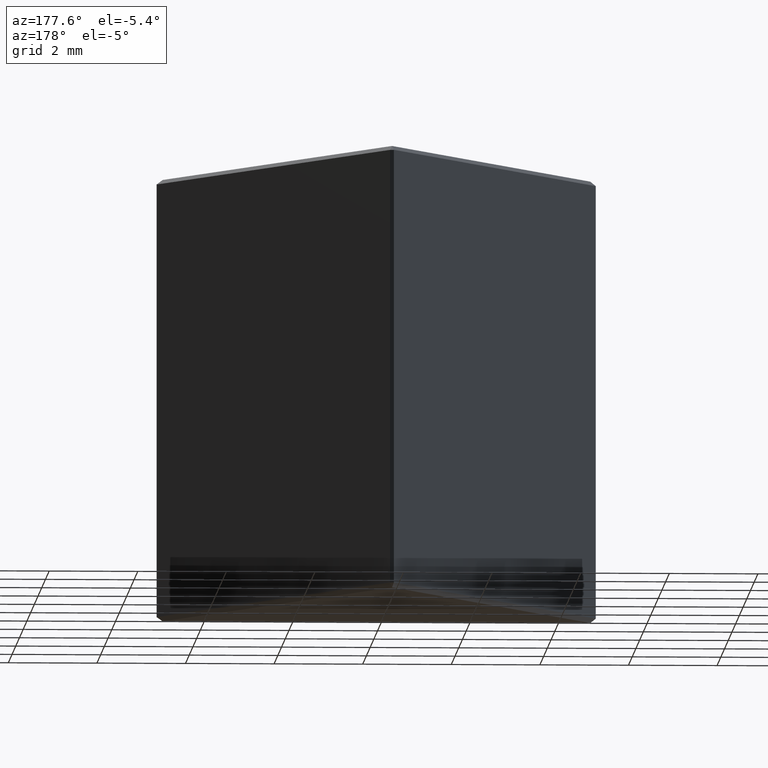
[diagram: clean part render]
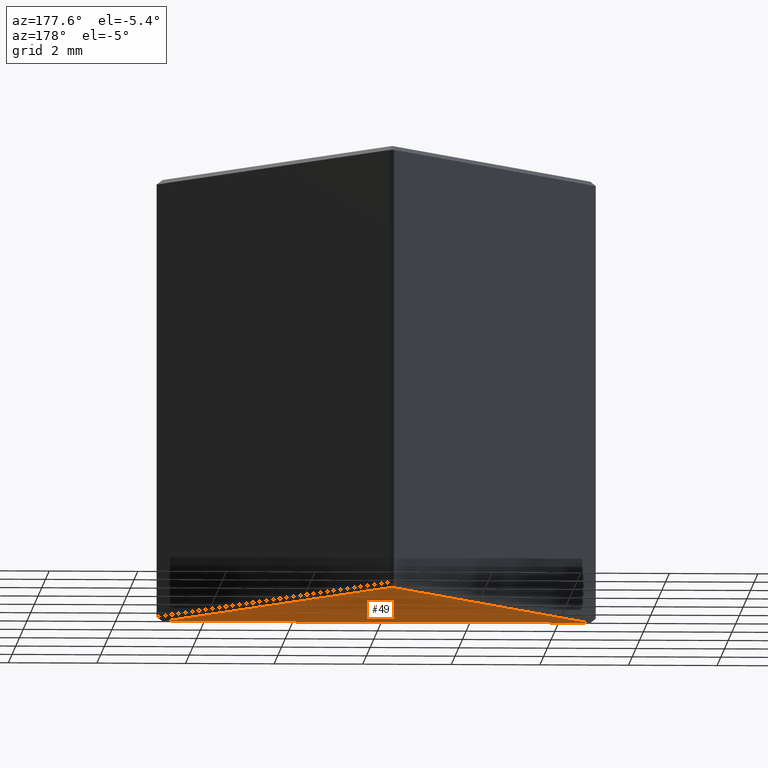
[diagram: same view with one face highlighted and labeled with its STEP entity id]
A machine part, auxiliary view. The second image highlights one B-rep face of the part: STEP entity #49.
In plain terms, the highlighted planar face has unit normal (0, 0, 1).
Its self-contained STEP definition (entity closure, byte-faithful):
#26 = VECTOR ( 'NONE', #444, 1000.000000000000000 ) ;
#45 = CARTESIAN_POINT ( 'NONE',  ( 0.000000000000000000, -8.560254037844385877, 0.000000000000000000 ) ) ;
#46 = ORIENTED_EDGE ( 'NONE', *, *, #359, .T. ) ;
#49 = ADVANCED_FACE ( 'NONE', ( #206 ), #124, .F. ) ;
#81 = DIRECTION ( 'NONE',  ( 0.5000000000000001110, 0.8660254037844385966, 0.000000000000000000 ) ) ;
#85 = DIRECTION ( 'NONE',  ( 1.000000000000000000, 0.000000000000000000, -0.000000000000000000 ) ) ;
#88 = VERTEX_POINT ( 'NONE', #143 ) ;
#118 = LINE ( 'NONE', #480, #163 ) ;
#124 = PLANE ( 'NONE',  #360 ) ;
#129 = DIRECTION ( 'NONE',  ( 0.000000000000000000, 0.000000000000000000, 1.000000000000000000 ) ) ;
#143 = CARTESIAN_POINT ( 'NONE',  ( -1.083700895443211318E-15, -0.2000000000000040357, 0.000000000000000000 ) ) ;
#163 = VECTOR ( 'NONE', #239, 1000.000000000000114 ) ;
#189 = VERTEX_POINT ( 'NONE', #303 ) ;
#206 = FACE_OUTER_BOUND ( 'NONE', #210, .T. ) ;
#210 = EDGE_LOOP ( 'NONE', ( #267, #46, #406 ) ) ;
#239 = DIRECTION ( 'NONE',  ( 0.5000000000000001110, -0.8660254037844385966, 0.000000000000000000 ) ) ;
#267 = ORIENTED_EDGE ( 'NONE', *, *, #352, .T. ) ;
#271 = VERTEX_POINT ( 'NONE', #435 ) ;
#298 = VECTOR ( 'NONE', #81, 1000.000000000000114 ) ;
#303 = CARTESIAN_POINT ( 'NONE',  ( 4.826794919243109661, -8.560254037844385877, 0.000000000000000000 ) ) ;
#305 = EDGE_CURVE ( 'NONE', #271, #88, #318, .T. ) ;
#318 = LINE ( 'NONE', #321, #298 ) ;
#321 = CARTESIAN_POINT ( 'NONE',  ( 0.08660254037844479502, -0.05000000000000055095, 0.000000000000000000 ) ) ;
#352 = EDGE_CURVE ( 'NONE', #88, #189, #118, .T. ) ;
#359 = EDGE_CURVE ( 'NONE', #189, #271, #391, .T. ) ;
#360 = AXIS2_PLACEMENT_3D ( 'NONE', #484, #129, #85 ) ;
#391 = LINE ( 'NONE', #45, #26 ) ;
#406 = ORIENTED_EDGE ( 'NONE', *, *, #305, .T. ) ;
#435 = CARTESIAN_POINT ( 'NONE',  ( -4.826794919243110549, -8.560254037844385877, 0.000000000000000000 ) ) ;
#444 = DIRECTION ( 'NONE',  ( -1.000000000000000000, 0.000000000000000000, 0.000000000000000000 ) ) ;
#480 = CARTESIAN_POINT ( 'NONE',  ( -0.08660254037844636321, -0.05000000000000144607, 0.000000000000000000 ) ) ;
#484 = CARTESIAN_POINT ( 'NONE',  ( 0.000000000000000000, 0.000000000000000000, 0.000000000000000000 ) ) ;